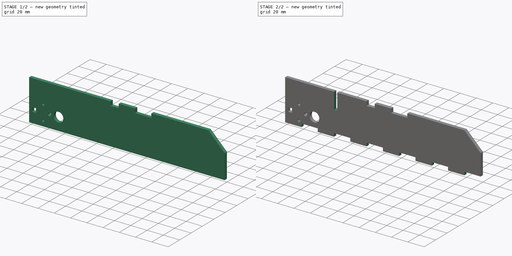
[diagram: build sequence overview — one tinted view per stage of 2, left to right]
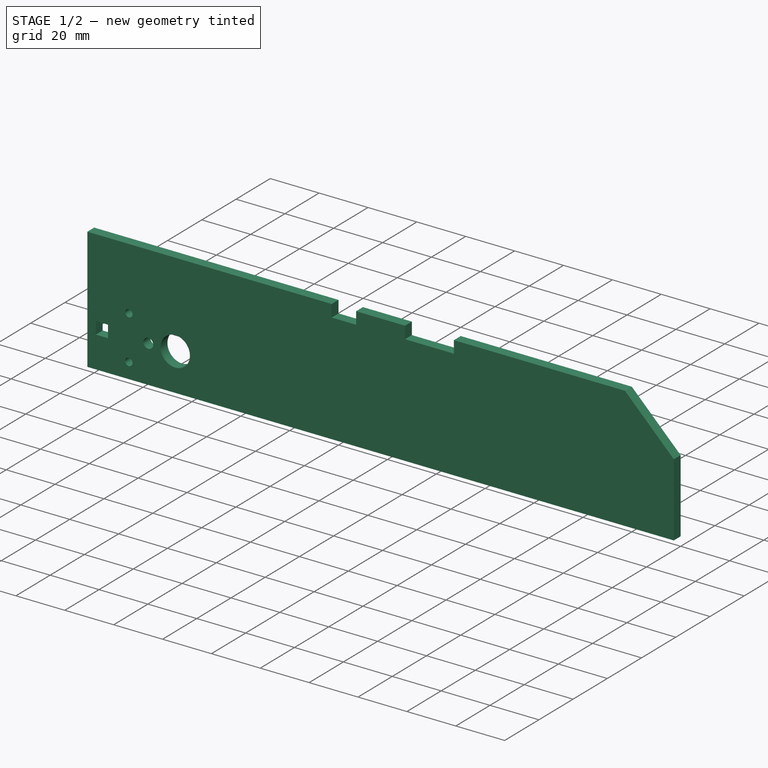
[diagram: stage 1 of 2 — iso view after this stage's code; geometry added in this stage tinted green]
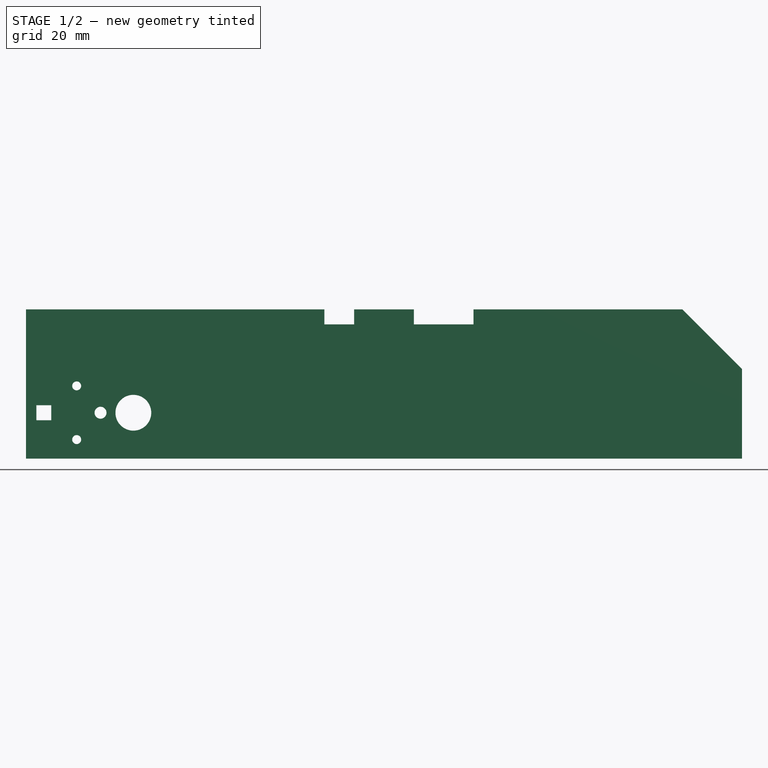
[diagram: stage 1 of 2 — front view after this stage's code; geometry added in this stage tinted green]
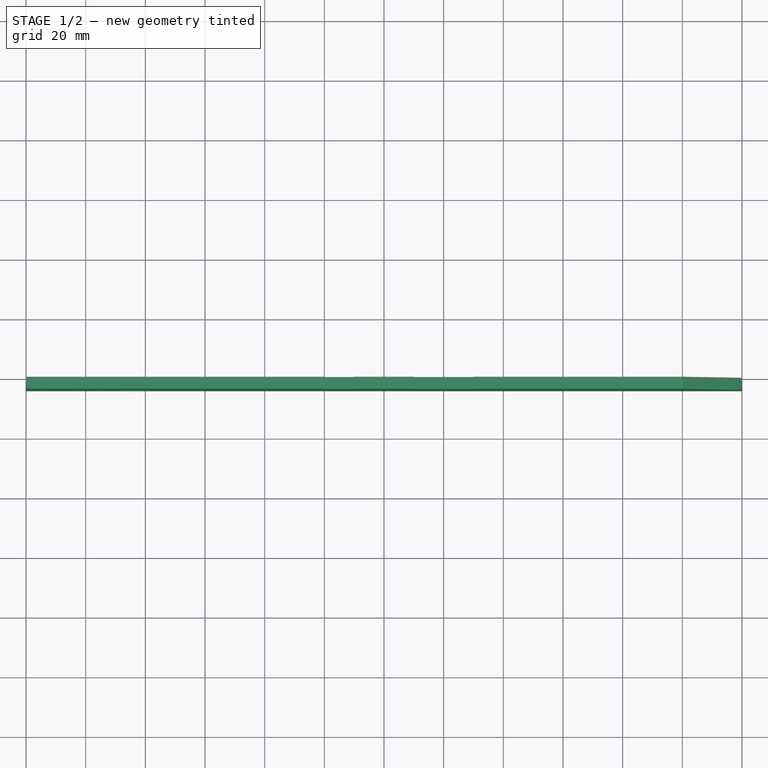
[diagram: stage 1 of 2 — top view after this stage's code; geometry added in this stage tinted green]
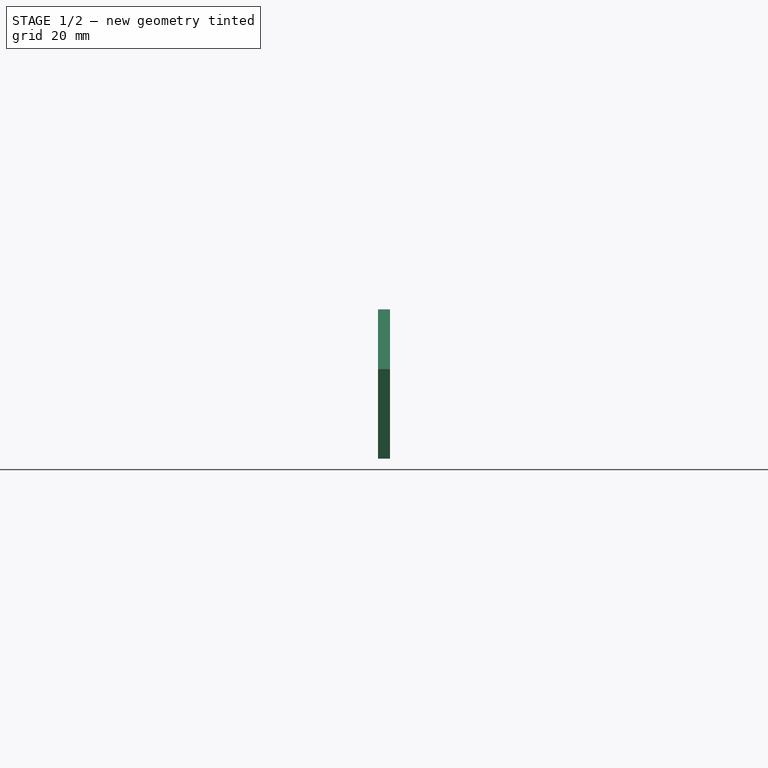
[diagram: stage 1 of 2 — right view after this stage's code; geometry added in this stage tinted green]
FCSTD DOCUMENT  (FreeCAD 1.0R39319 (Git))
Label: chassis_A4
License: All rights reserved
LicenseURL: https://en.wikipedia.org/wiki/All_rights_reserved
objects: Sketcher::SketchObject×4, PartDesign::Pocket×3, PartDesign::Pad×1, PartDesign::Body×1
note: 21 computed .brp shape members not serialized (recipe doc carries the construction recipe); baked Part::Feature solids carry a one-line shape summary decoded from their .brp

FEATURE [Sketcher::SketchObject] Sketch
  ArcFitTolerance = 1e-06
  AttachmentSupport = -> [XZ_Plane]
  FullyConstrained = true
  MakeInternals = false
  MapMode = 5
  Placement = pos=(0,0,0) rot=(1,0,0;1.5708rad)
  sketch-geometry (7):
    g0: LineSegment StartX=0 StartY=0 StartZ=0 EndX=240 EndY=0 EndZ=0
    g1: LineSegment StartX=240 StartY=0 StartZ=0 EndX=240 EndY=30 EndZ=0
    g2: LineSegment StartX=220 StartY=50 StartZ=0 EndX=0 EndY=50 EndZ=0
    g3: LineSegment StartX=0 StartY=50 StartZ=0 EndX=0 EndY=0 EndZ=0
    g4: ArcOfCircle [constr] CenterX=220 CenterY=30 CenterZ=0 NormalX=0 NormalY=0 NormalZ=1 AngleXU=0 Radius=20 StartAngle=0 EndAngle=1.5708
    g5: GeomPoint [constr] X=240 Y=50 Z=0
    g6: LineSegment StartX=240 StartY=30 StartZ=0 EndX=220 EndY=50 EndZ=0
  constraints (17):
    c: Coincident(g0,g1)
    c: Coincident(g2,g3)
    c: Coincident(g3,g0)
    c: Horizontal(g0)
    c: Horizontal(g2)
    c: Vertical(g1)
    c: Vertical(g3)
    c: Coincident(g0,g-1)
    c: DistanceY(g3,g3) = 50
    c: PointOnObject(g5,g2)
    c: PointOnObject(g5,g1)
    c: Tangent(g2,g4) = -1.5708
    c: Tangent(g1,g4) = -1.5708
    c: Coincident(g6,g2)
    c: Coincident(g6,g1)
    c: DistanceX(g0,g0) = 240
    c: DistanceY(g1,g1) = 30
FEATURE [PartDesign::Pad] Pad
  Direction = (0,-1,2e-16)
  Length = 4
  Length2 = 10
  Placement = pos=(0,0,0) rot=(1,0,0;1.5708rad)
  Profile = -> Sketch
  ReferenceAxis = -> Sketch [N_Axis]
  Refine = true
  Suppressed = false
  Type = 0
FEATURE [Sketcher::SketchObject] Sketch001
  ArcFitTolerance = 1e-06
  AttachmentSupport = -> [Pad]
  ExternalGeometry = -> [Pad]
  FullyConstrained = false
  MakeInternals = false
  MapMode = 5
  Placement = pos=(0,-4,9e-16) rot=(1,0,0;1.5708rad)
  sketch-geometry (25):
    g0: LineSegment [constr] StartX=16.9768 StartY=24.3644 StartZ=0 EndX=16.9768 EndY=15.3644 EndZ=0
    g1: LineSegment [constr] StartX=16.9768 StartY=15.3644 StartZ=0 EndX=16.9768 EndY=6.36444 EndZ=0
    g2: LineSegment [constr] StartX=16.9768 StartY=15.3644 StartZ=0 EndX=24.9768 EndY=15.3644 EndZ=0
    g3: LineSegment [constr] StartX=24.9768 StartY=15.3644 StartZ=0 EndX=35.9768 EndY=15.3644 EndZ=0
    g4: LineSegment [constr] StartX=16.9768 StartY=15.3644 StartZ=0 EndX=5.97685 EndY=15.3644 EndZ=0
    g5: Circle CenterX=16.9768 CenterY=24.3644 CenterZ=0 NormalX=0 NormalY=0 NormalZ=1 AngleXU=0 Radius=1.5
    g6: Circle CenterX=24.9768 CenterY=15.3644 CenterZ=0 NormalX=0 NormalY=0 NormalZ=1 AngleXU=0 Radius=2
    g7: Circle CenterX=35.9768 CenterY=15.3644 CenterZ=0 NormalX=0 NormalY=0 NormalZ=1 AngleXU=0 Radius=6
    g8: Circle CenterX=16.9768 CenterY=6.36444 CenterZ=0 NormalX=0 NormalY=0 NormalZ=1 AngleXU=0 Radius=1.5
    g9: LineSegment StartX=8.47685 StartY=17.8644 StartZ=0 EndX=3.47685 EndY=17.8644 EndZ=0
    g10: LineSegment StartX=3.47685 StartY=17.8644 StartZ=0 EndX=3.47685 EndY=12.8644 EndZ=0
    g11: LineSegment StartX=3.47685 StartY=12.8644 StartZ=0 EndX=8.47685 EndY=12.8644 EndZ=0
    g12: LineSegment StartX=8.47685 StartY=12.8644 StartZ=0 EndX=8.47685 EndY=17.8644 EndZ=0
    g13: Circle [constr] CenterX=5.97685 CenterY=15.3644 CenterZ=0 NormalX=0 NormalY=0 NormalZ=1 AngleXU=0 Radius=3.53553
    g14: LineSegment [constr] StartX=100 StartY=45 StartZ=0 EndX=150 EndY=45 EndZ=0
    g15: LineSegment [constr] StartX=150 StartY=50 StartZ=0 EndX=100 EndY=50 EndZ=0
    g16: LineSegment StartX=100 StartY=45 StartZ=0 EndX=110 EndY=45 EndZ=0
    g17: LineSegment StartX=110 StartY=45 StartZ=0 EndX=110 EndY=50 EndZ=0
    g18: LineSegment [constr] StartX=110 StartY=50 StartZ=0 EndX=130 EndY=50 EndZ=0
    g19: LineSegment StartX=130 StartY=50 StartZ=0 EndX=130 EndY=45 EndZ=0
    g20: LineSegment StartX=100 StartY=50 StartZ=0 EndX=110 EndY=50 EndZ=0
    g21: LineSegment StartX=130 StartY=45 StartZ=0 EndX=150 EndY=45 EndZ=0
    g22: LineSegment StartX=150 StartY=45 StartZ=0 EndX=150 EndY=50 EndZ=0
    g23: LineSegment StartX=150 StartY=50 StartZ=0 EndX=130 EndY=50 EndZ=0
    g24: LineSegment StartX=100 StartY=45 StartZ=0 EndX=100 EndY=50 EndZ=0
  constraints (67):
    c: Vertical(g0)
    c: Coincident(g1,g0)
    c: Vertical(g1)
    c: Coincident(g2,g0)
    c: Horizontal(g2)
    c: Coincident(g3,g2)
    c: Horizontal(g3)
    c: Coincident(g4,g0)
    c: Horizontal(g4)
    c: DistanceX(g3,g3) = 11
    c: DistanceX(g2,g2) = 8
    c: DistanceX(g4,g4) = 11
    c: Equal(g0,g1)
    c: DistanceY(g1,g0) = 18
    c: Coincident(g5,g0)
    c: Coincident(g6,g2)
    c: Coincident(g7,g3)
    c: Coincident(g8,g1)
    c: Equal(g8,g5)
    c: Coincident(g9,g10)
    c: Coincident(g10,g11)
    c: Coincident(g11,g12)
    c: Coincident(g12,g9)
    c: Equal(g9,g10)
    c: Equal(g9,g11)
    c: Equal(g9,g12)
    c: PointOnObject(g9,g13)
    c: PointOnObject(g10,g13)
    c: PointOnObject(g11,g13)
    c: PointOnObject(g12,g13)
    c: Coincident(g13,g4)
    c: Horizontal(g9)
    c: Horizontal(g14)
    c: Horizontal(g15)
    c: PointOnObject(g15,g-3)
    c: DistanceY(g14,g15) = 5
    c: Diameter(g5) = 3
    c: Diameter(g6) = 4
    c: Diameter(g7) = 12
    c: DistanceY(g10,g10) = 5
    c: DistanceX(g14,g14) = 50
    c: DistanceX(g15,g-4) = 90
    c: PointOnObject(g16,g14)
    c: Coincident(g17,g16)
    c: PointOnObject(g17,g15)
    c: Vertical(g17)
    c: Coincident(g18,g17)
    c: PointOnObject(g18,g15)
    c: Coincident(g19,g18)
    c: PointOnObject(g19,g14)
    c: Vertical(g19)
    c: Coincident(g20,g17)
    c: DistanceX(g17,g18) = 20
    c: Coincident(g21,g19)
    c: Coincident(g21,g14)
    c: Coincident(g22,g14)
    c: Coincident(g23,g18)
    c: Coincident(g24,g16)
    c: Coincident(g24,g20)
    c: Vertical(g24)
    c: DistanceX(g20,g20) = 10
    c: Coincident(g20,g15)
    c: Coincident(g16,g14)
    c: Vertical(g22)
    c: Coincident(g23,g22)
    c: DistanceX(g14,g14) = 50
    c: Coincident(g22,g15)
FEATURE [PartDesign::Pocket] Pocket
  BaseFeature = -> Pad
  Direction = (0,1,-2e-16)
  Length = 5
  Length2 = 5
  Placement = pos=(0,0,0) rot=(1,0,0;1.5708rad)
  Profile = -> Sketch001
  ReferenceAxis = -> Sketch001 [N_Axis]
  Refine = true
  Suppressed = false
  Type = 0
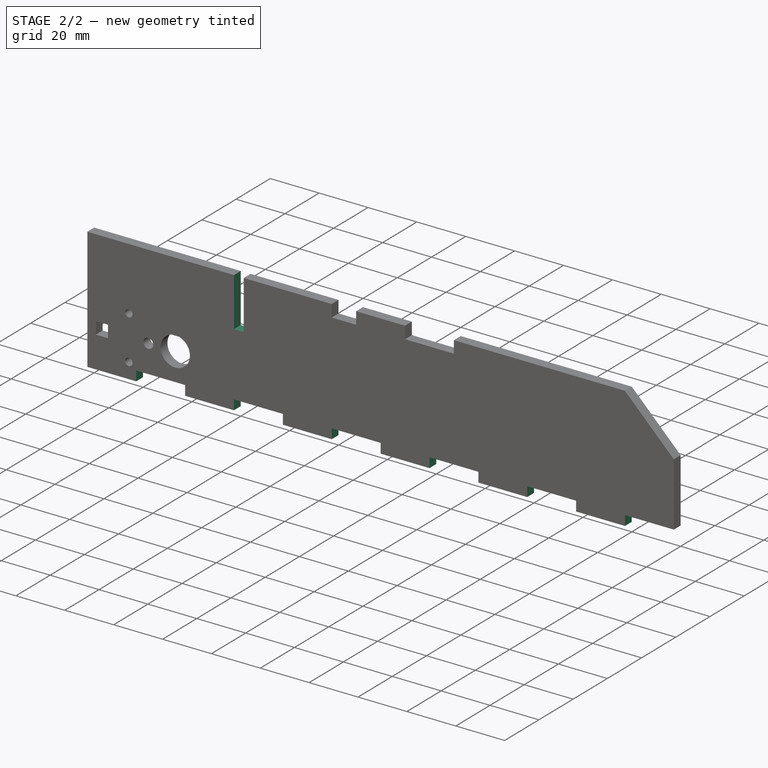
[diagram: stage 2 of 2 — iso view after this stage's code; geometry added in this stage tinted green]
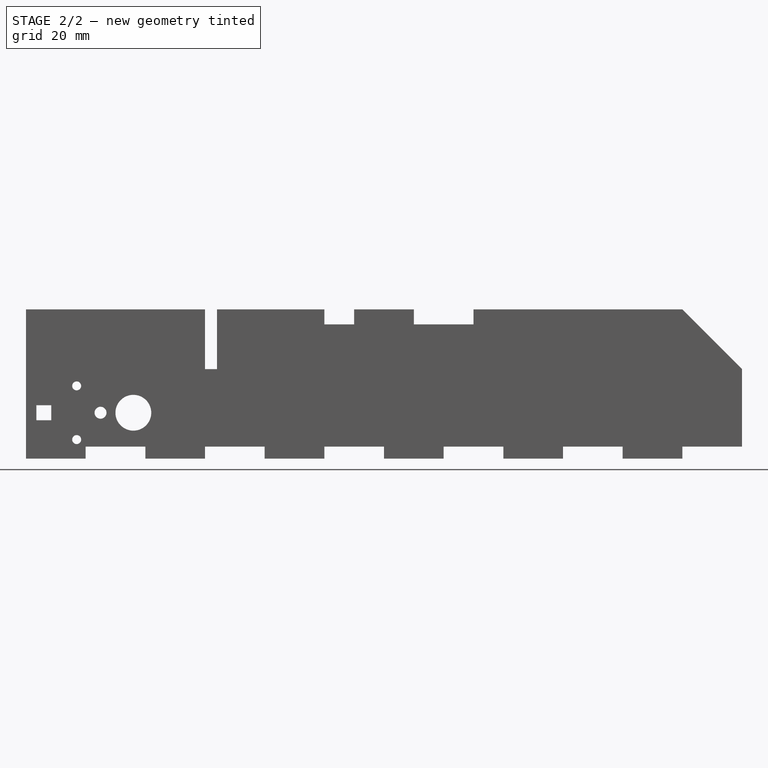
[diagram: stage 2 of 2 — front view after this stage's code; geometry added in this stage tinted green]
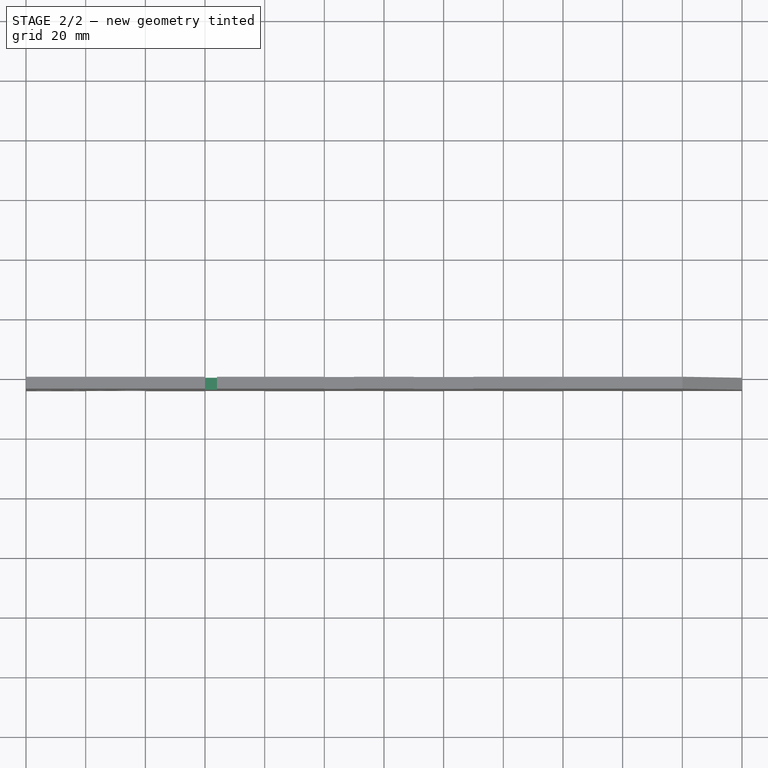
[diagram: stage 2 of 2 — top view after this stage's code; geometry added in this stage tinted green]
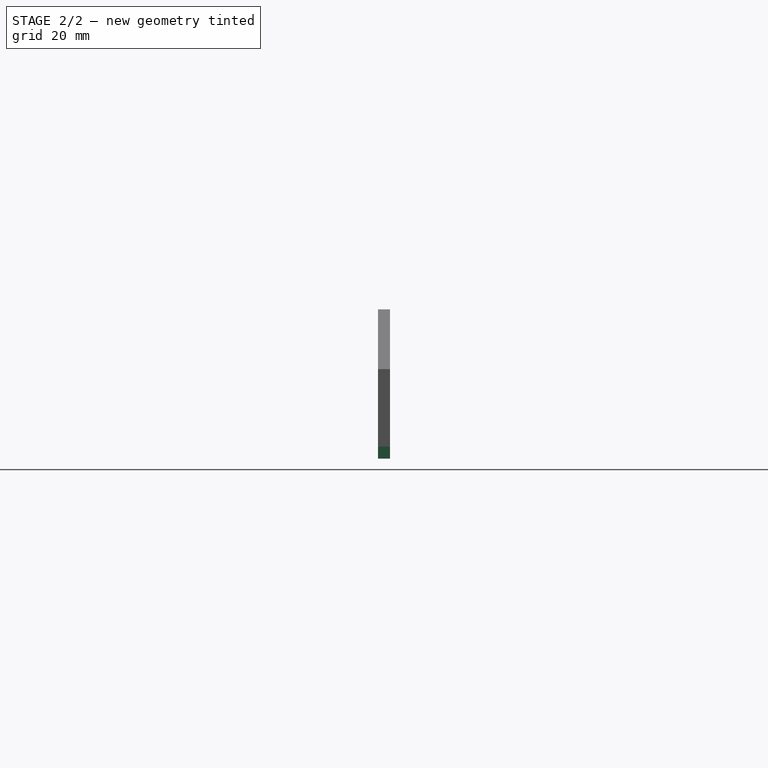
[diagram: stage 2 of 2 — right view after this stage's code; geometry added in this stage tinted green]
FEATURE [Sketcher::SketchObject] Sketch002
  ArcFitTolerance = 1e-06
  AttachmentSupport = -> [Pocket]
  ExternalGeometry = -> [Pocket]
  FullyConstrained = true
  MakeInternals = false
  MapMode = 5
  Placement = pos=(0,-4,9e-16) rot=(1,0,0;1.5708rad)
  sketch-geometry (28):
    g0: LineSegment StartX=20 StartY=0 StartZ=0 EndX=20 EndY=4 EndZ=0
    g1: LineSegment StartX=20 StartY=4 StartZ=0 EndX=40 EndY=4 EndZ=0
    g2: LineSegment StartX=40 StartY=4 StartZ=0 EndX=40 EndY=0 EndZ=0
    g3: LineSegment StartX=20 StartY=0 StartZ=0 EndX=40 EndY=0 EndZ=0
    g4: LineSegment StartX=60 StartY=0 StartZ=0 EndX=80 EndY=0 EndZ=0
    g5: LineSegment StartX=80 StartY=0 StartZ=0 EndX=80 EndY=4 EndZ=0
    g6: LineSegment StartX=80 StartY=4 StartZ=0 EndX=60 EndY=4 EndZ=0
    g7: LineSegment StartX=60 StartY=4 StartZ=0 EndX=60 EndY=0 EndZ=0
    g8: LineSegment StartX=100 StartY=0 StartZ=0 EndX=120 EndY=0 EndZ=0
    g9: LineSegment StartX=120 StartY=0 StartZ=0 EndX=120 EndY=4 EndZ=0
    g10: LineSegment StartX=120 StartY=4 StartZ=0 EndX=100 EndY=4 EndZ=0
    g11: LineSegment StartX=100 StartY=4 StartZ=0 EndX=100 EndY=0 EndZ=0
    g12: LineSegment StartX=140 StartY=0 StartZ=0 EndX=160 EndY=0 EndZ=0
    g13: LineSegment StartX=160 StartY=0 StartZ=0 EndX=160 EndY=4 EndZ=0
    g14: LineSegment StartX=160 StartY=4 StartZ=0 EndX=140 EndY=4 EndZ=0
    g15: LineSegment StartX=140 StartY=4 StartZ=0 EndX=140 EndY=0 EndZ=0
    g16: LineSegment [constr] StartX=40 StartY=4 StartZ=0 EndX=60 EndY=4 EndZ=0
    g17: LineSegment [constr] StartX=80 StartY=4 StartZ=0 EndX=100 EndY=4 EndZ=0
    g18: LineSegment [constr] StartX=120 StartY=4 StartZ=0 EndX=140 EndY=4 EndZ=0
    g19: LineSegment [constr] StartX=160 StartY=4 StartZ=0 EndX=240 EndY=4 EndZ=0
    g20: LineSegment StartX=180 StartY=4 StartZ=0 EndX=180 EndY=0 EndZ=0
    g21: LineSegment StartX=180 StartY=0 StartZ=0 EndX=200 EndY=0 EndZ=0
    g22: LineSegment StartX=200 StartY=0 StartZ=0 EndX=200 EndY=4 EndZ=0
    g23: LineSegment StartX=200 StartY=4 StartZ=0 EndX=180 EndY=4 EndZ=0
    g24: LineSegment StartX=220 StartY=4 StartZ=0 EndX=220 EndY=0 EndZ=0
    g25: LineSegment StartX=220 StartY=0 StartZ=0 EndX=240 EndY=0 EndZ=0
    g26: LineSegment StartX=240 StartY=0 StartZ=0 EndX=240 EndY=4 EndZ=0
    g27: LineSegment StartX=240 StartY=4 StartZ=0 EndX=220 EndY=4 EndZ=0
  constraints (83):
    c: PointOnObject(g0,g-3)
    c: Vertical(g0)
    c: Coincident(g1,g0)
    c: Horizontal(g1)
    c: Coincident(g2,g1)
    c: PointOnObject(g2,g-3)
    c: Vertical(g2)
    c: DistanceX(g1,g1) = 20
    c: DistanceX(g-1,g0) = 20
    c: Coincident(g3,g0)
    c: Coincident(g3,g2)
    c: Coincident(g4,g5)
    c: Coincident(g5,g6)
    c: Coincident(g6,g7)
    c: Coincident(g7,g4)
    c: Horizontal(g4)
    c: Horizontal(g6)
    c: Vertical(g5)
    c: Vertical(g7)
    c: PointOnObject(g4,g-3)
    c: Coincident(g8,g9)
    c: Coincident(g9,g10)
    c: Coincident(g10,g11)
    c: Coincident(g11,g8)
    c: Horizontal(g8)
    c: Horizontal(g10)
    c: Vertical(g9)
    c: Vertical(g11)
    c: PointOnObject(g8,g-3)
    c: Coincident(g12,g13)
    c: Coincident(g13,g14)
    c: Coincident(g14,g15)
    c: Coincident(g15,g12)
    c: Horizontal(g12)
    c: Horizontal(g14)
    c: Vertical(g13)
    c: Vertical(g15)
    c: PointOnObject(g12,g-3)
    c: DistanceY(g2,g2) = 4
    c: Horizontal(g1,g6)
    c: Horizontal(g5,g10)
    c: Equal(g1,g6)
    c: Equal(g6,g10)
    c: Equal(g10,g14)
    c: DistanceX(g14,g14) = 20
    c: Coincident(g16,g1)
    c: Coincident(g16,g6)
    c: Coincident(g17,g5)
    c: Coincident(g17,g10)
    c: Coincident(g18,g9)
    c: Coincident(g18,g14)
    c: Horizontal(g18)
    c: Equal(g16,g6)
    c: Equal(g17,g10)
    c: Equal(g10,g18)
    c: Coincident(g19,g13)
    c: PointOnObject(g19,g-5)
    c: Horizontal(g19)
    c: DistanceX(g19,g19) = 80
    c: Coincident(g20,g21)
    c: Coincident(g21,g22)
    c: Coincident(g22,g23)
    c: Coincident(g23,g20)
    c: Vertical(g20)
    c: Vertical(g22)
    c: Horizontal(g21)
    c: Horizontal(g23)
    c: PointOnObject(g20,g19)
    c: PointOnObject(g21,g-3)
    c: DistanceX(g13,g20) = 20
    c: Equal(g23,g14)
    c: Coincident(g24,g25)
    c: Coincident(g25,g26)
    c: Coincident(g26,g27)
    c: Coincident(g27,g24)
    c: Vertical(g24)
    c: Vertical(g26)
    c: Horizontal(g25)
    c: Horizontal(g27)
    c: PointOnObject(g24,g19)
    c: Coincident(g25,g-5)
    c: Equal(g27,g23)
    c: DistanceX(g22,g24) = 20
FEATURE [PartDesign::Pocket] Pocket001
  BaseFeature = -> Pocket
  Direction = (0,1,-2e-16)
  Length = 5
  Length2 = 5
  Placement = pos=(0,0,0) rot=(1,0,0;1.5708rad)
  Profile = -> Sketch002
  ReferenceAxis = -> Sketch002 [N_Axis]
  Refine = true
  Suppressed = false
  Type = 0
FEATURE [Sketcher::SketchObject] Sketch003
  ArcFitTolerance = 1e-06
  AttachmentSupport = -> [Pocket001]
  ExternalGeometry = -> [Pocket001]
  FullyConstrained = true
  MakeInternals = false
  MapMode = 5
  Placement = pos=(0,-4,9e-16) rot=(1,0,0;1.5708rad)
  sketch-geometry (4):
    g0: LineSegment StartX=60 StartY=50 StartZ=0 EndX=60 EndY=30 EndZ=0
    g1: LineSegment StartX=60 StartY=30 StartZ=0 EndX=64 EndY=30 EndZ=0
    g2: LineSegment StartX=64 StartY=30 StartZ=0 EndX=64 EndY=50 EndZ=0
    g3: LineSegment StartX=64 StartY=50 StartZ=0 EndX=60 EndY=50 EndZ=0
  constraints (12):
    c: Coincident(g0,g1)
    c: Coincident(g1,g2)
    c: Coincident(g2,g3)
    c: Coincident(g3,g0)
    c: Vertical(g0)
    c: Vertical(g2)
    c: Horizontal(g1)
    c: Horizontal(g3)
    c: PointOnObject(g0,g-3)
    c: DistanceX(g3,g3) = 4
    c: DistanceY(g2,g2) = 20
    c: DistanceX(g-3,g0) = 60
FEATURE [PartDesign::Pocket] Pocket002
  BaseFeature = -> Pocket001
  Direction = (0,1,-2e-16)
  Length = 5
  Length2 = 5
  Placement = pos=(0,0,0) rot=(1,0,0;1.5708rad)
  Profile = -> Sketch003
  ReferenceAxis = -> Sketch003 [N_Axis]
  Refine = true
  Suppressed = false
  Type = 0
FEATURE [PartDesign::Body] Body
  AllowCompound = false
  Group = -> [Sketch,Pad,Sketch001,Pocket,Sketch002,Pocket001,Sketch003,Pocket002]
  Origin = -> Origin
  Tip = -> Pocket002
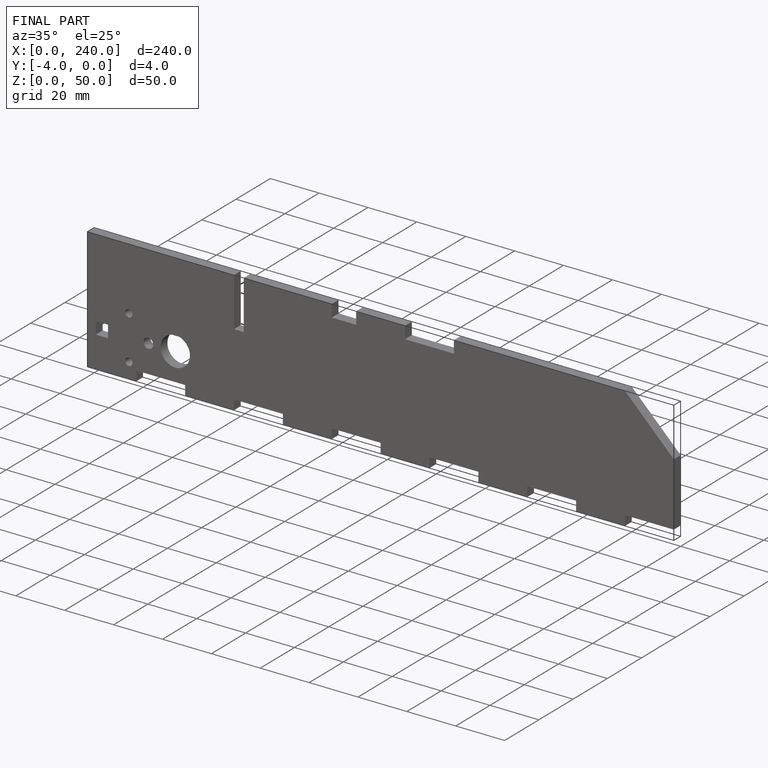
[diagram: finished part — iso view with bounding-box wireframe]
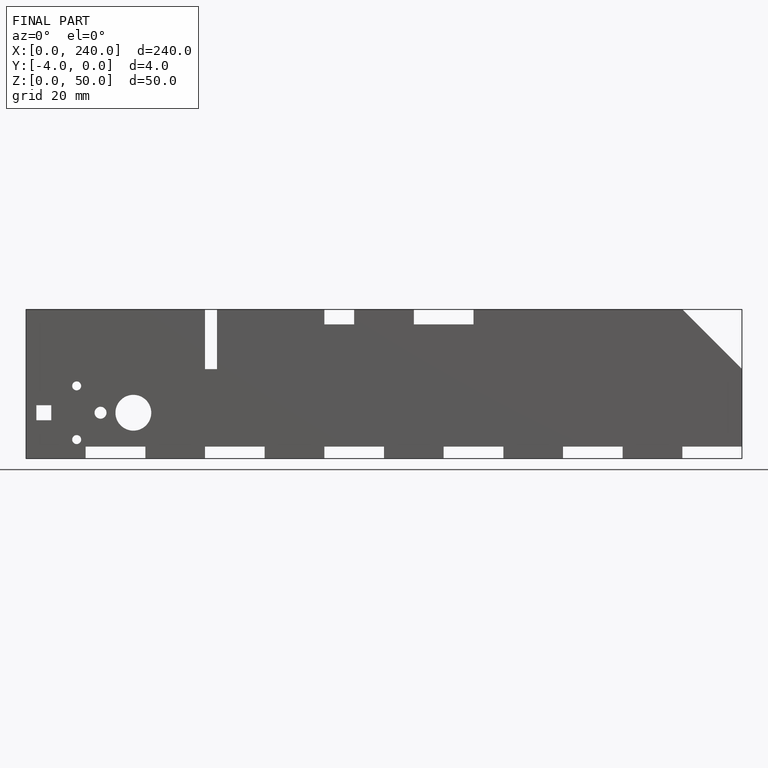
[diagram: finished part — front view with bounding-box wireframe]
